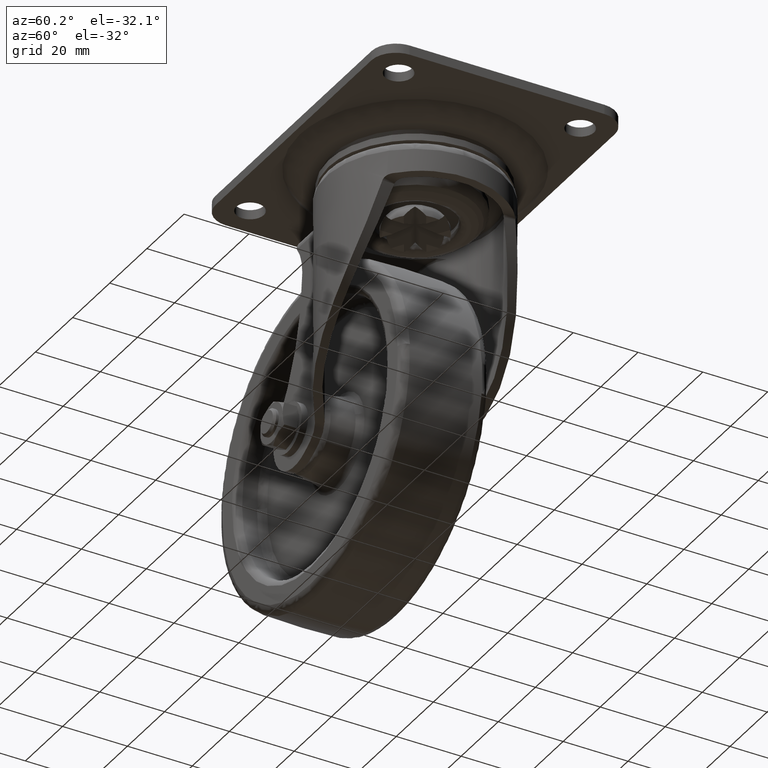
[diagram: clean part render]
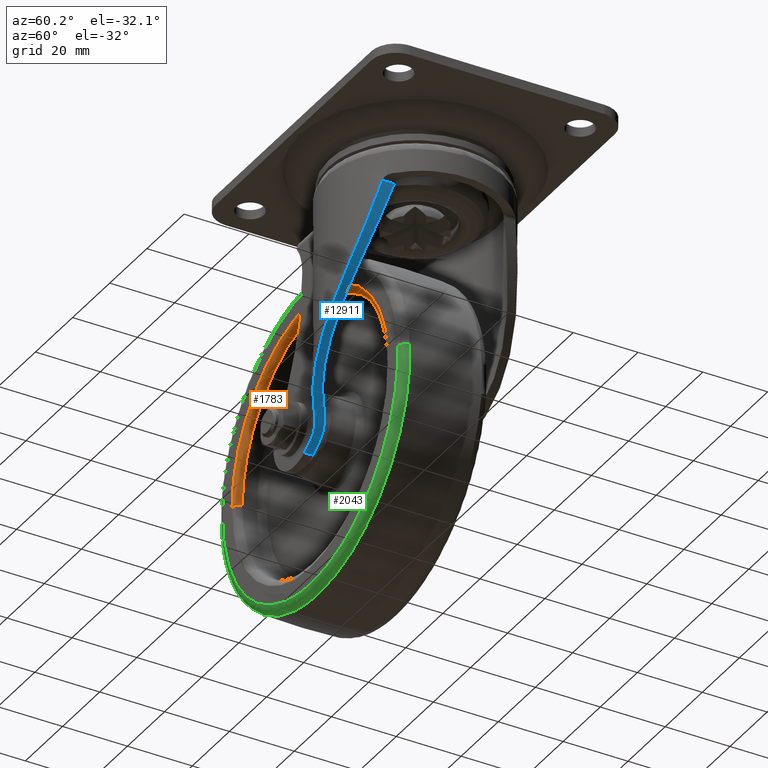
[diagram: same view with three faces highlighted in distinct colors, each labeled with its STEP entity id]
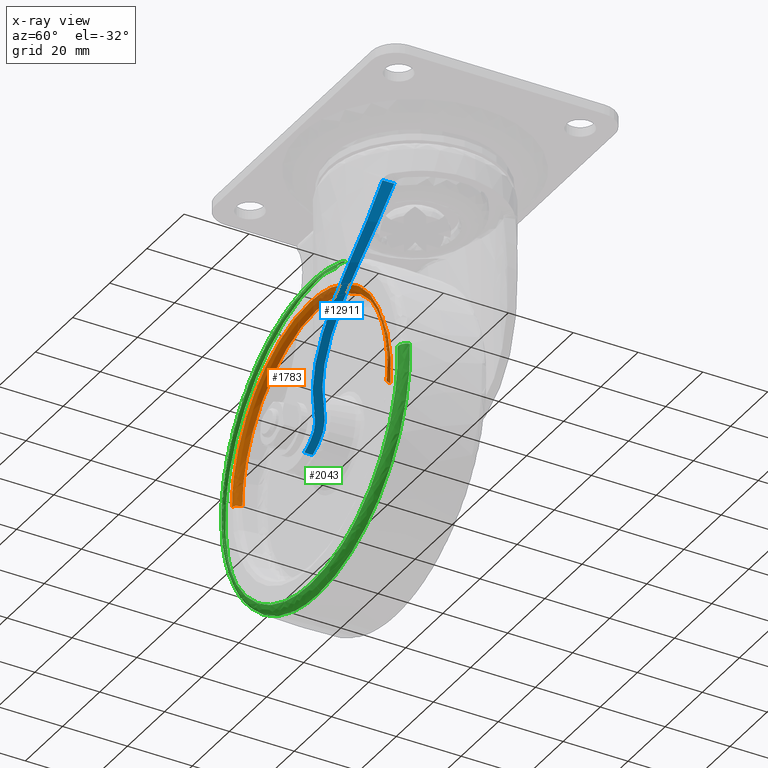
[diagram: x-ray of the same camera — body ghosted, the three highlighted faces saturated]
A machine part, auxiliary view with three faces highlighted in distinct colors.
The next image is the same camera in x-ray (body ghosted, the three faces saturated) — at least one of them is partly hidden behind the body in this view.
Their STEP definitions:

[orange] entity #1783 — the highlighted face is a freeform B-spline surface patch.
#81=CARTESIAN_POINT('',(-26.610430527720521,-11.500000085131690,-33.513357346729720));
#82=VERTEX_POINT('',#81);
#88=CARTESIAN_POINT('',(-32.999587000000091,-11.500000000000000,-32.999794000000009));
#89=VERTEX_POINT('',#88);
#90=CARTESIAN_POINT('',(-26.610430527720521,-11.500000085131690,-33.513357346729720));
#91=CARTESIAN_POINT('',(-28.721838562280539,-11.500000054637431,-33.171606622309348));
#92=CARTESIAN_POINT('',(-30.860702025963821,-11.500000026138880,-32.999720738758782));
#93=CARTESIAN_POINT('',(-32.999587000000091,-11.500000000000000,-32.999794000000009));
#94=B_SPLINE_CURVE_WITH_KNOTS('',3,(#90,#91,#92,#93),.UNSPECIFIED.,.F.,.U.,(4,4),(1.183253E-009,6.416668188560689),.UNSPECIFIED.);
#95=EDGE_CURVE('',#82,#89,#94,.T.);
#97=CARTESIAN_POINT('',(-72.999587000000702,-11.500001097917220,-72.999794000000009));
#98=VERTEX_POINT('',#97);
#99=CARTESIAN_POINT('',(-32.999587000000091,-11.500000000000000,-32.999794000000009));
#100=CARTESIAN_POINT('',(-35.617590997525873,-11.500000035925190,-32.999486940496112));
#101=CARTESIAN_POINT('',(-40.935293368073971,-11.500000116098430,-33.523625675318989));
#102=CARTESIAN_POINT('',(-48.246839152939820,-11.500000247214119,-35.765858664995818));
#103=CARTESIAN_POINT('',(-53.913770969516733,-11.500000365952021,-38.750791629008482));
#104=CARTESIAN_POINT('',(-58.505187814377010,-11.500000474216669,-42.048082099240752));
#105=CARTESIAN_POINT('',(-62.171427975608928,-11.500000571272031,-45.453860377704849));
#106=CARTESIAN_POINT('',(-65.759383480812929,-11.500000680513139,-49.825728362406473));
#107=CARTESIAN_POINT('',(-68.414801055524791,-11.500000776507880,-54.165022420568960));
#108=CARTESIAN_POINT('',(-70.888714294984922,-11.500000886417880,-59.699700710648607));
#109=CARTESIAN_POINT('',(-72.577013129787687,-11.500000993311730,-65.800299865048302));
#110=CARTESIAN_POINT('',(-72.999711296436089,-11.500001066481300,-70.709066863324978));
#111=CARTESIAN_POINT('',(-72.999587000000702,-11.500001097917220,-72.999794000000009));
#112=B_SPLINE_CURVE_WITH_KNOTS('',3,(#99,#100,#101,#102,#103,#104,#105,#106,#107,#108,#109,#110,#111),.UNSPECIFIED.,.F.,.U.,(4,1,1,1,1,1,1,1,1,1,4),(0.000000170427818,7.853970492414966,15.953426799167429,22.825709580180838,26.998185316444818,32.888499218903682,37.797342608095491,43.933264952801629,48.105718162683388,55.959740187226672,62.831951636742410),.UNSPECIFIED.);
#113=EDGE_CURVE('',#89,#98,#112,.T.);
#133=CARTESIAN_POINT('',(6.732878551401489,-11.500001097916780,-77.618363173102694));
#134=VERTEX_POINT('',#133);
#150=CARTESIAN_POINT('',(-3.041358080854533,-11.500000551329240,-46.494992170367738));
#151=VERTEX_POINT('',#150);
#152=CARTESIAN_POINT('',(6.732878551401489,-11.500001097916780,-77.618363173102694));
#153=CARTESIAN_POINT('',(6.965369379658082,-11.500001073322339,-75.619250721012946));
#154=CARTESIAN_POINT('',(7.127606874067149,-11.500001019951331,-71.585888016690049));
#155=CARTESIAN_POINT('',(6.381551508904199,-11.500000918667441,-64.870164739270095));
#156=CARTESIAN_POINT('',(4.583432629978576,-11.500000813357650,-58.797953234686652));
#157=CARTESIAN_POINT('',(1.465325458394497,-11.500000686370081,-52.321603033285022));
#158=CARTESIAN_POINT('',(-1.127512906472156,-11.500000604394611,-48.657358876218787));
#159=CARTESIAN_POINT('',(-3.041358080854533,-11.500000551329240,-46.494992170367738));
#160=B_SPLINE_CURVE_WITH_KNOTS('',3,(#152,#153,#154,#155,#156,#157,#158,#159),.UNSPECIFIED.,.F.,.U.,(4,1,1,1,1,4),(0.000000052375434,6.037752873155959,12.075510896159150,20.213346664417450,24.938552442348360,33.601419436579363),.UNSPECIFIED.);
#161=EDGE_CURVE('',#134,#151,#160,.T.);
#262=CARTESIAN_POINT('',(-3.041358080854533,-11.500000551329240,-46.494992170367738));
#263=CARTESIAN_POINT('',(-4.651238969682730,-11.500000506677290,-44.674993700620313));
#264=CARTESIAN_POINT('',(-7.890664031934187,-11.500000425230940,-41.625047396554940));
#265=CARTESIAN_POINT('',(-13.491390487520951,-11.500000305406420,-37.881382371137981));
#266=CARTESIAN_POINT('',(-19.624548981914529,-11.500000192012219,-35.080386321344363));
#267=CARTESIAN_POINT('',(-24.211748266490812,-11.500000119769339,-33.901238205166010));
#268=CARTESIAN_POINT('',(-26.610430527720521,-11.500000085131690,-33.513357346729720));
#269=B_SPLINE_CURVE_WITH_KNOTS('',3,(#262,#263,#264,#265,#266,#267,#268),.UNSPECIFIED.,.F.,.U.,(4,1,1,1,4),(8.313588E-009,7.289514425216805,13.292644707187110,20.153363282616588,27.442877699519240),.UNSPECIFIED.);
#270=EDGE_CURVE('',#151,#82,#269,.T.);
#1687=CARTESIAN_POINT('',(8.857278312651511,-13.495184528212507,-77.865302220396657));
#1688=CARTESIAN_POINT('',(9.139116635069225,-13.495184528212503,-75.440710961475645));
#1689=CARTESIAN_POINT('',(9.139116635069227,-13.495184528212500,-72.999794000000009));
#1690=CARTESIAN_POINT('',(9.139116635069234,-13.495184528212503,-30.861090364930703));
#1691=CARTESIAN_POINT('',(-32.999587000000083,-13.495184528212500,-30.861090364930696));
#1692=CARTESIAN_POINT('',(-75.138290635069410,-13.495184528212503,-30.861090364930689));
#1693=CARTESIAN_POINT('',(-75.138290635069396,-13.495184528212500,-72.999793999999980));
#1694=CARTESIAN_POINT('',(6.578440065992407,-13.654674266166609,-77.600406458632037));
#1695=CARTESIAN_POINT('',(6.844934096769973,-13.654674266166609,-75.307818665619735));
#1696=CARTESIAN_POINT('',(6.844934096769973,-13.654674266166609,-72.999794000000037));
#1697=CARTESIAN_POINT('',(6.844934096769980,-13.654674266166605,-33.155272903229964));
#1698=CARTESIAN_POINT('',(-32.999587000000098,-13.654674266166609,-33.155272903229964));
#1699=CARTESIAN_POINT('',(-72.844108096770128,-13.654674266166605,-33.155272903229942));
#1700=CARTESIAN_POINT('',(-72.844108096770171,-13.654674266166609,-72.999794000000009));
#1701=CARTESIAN_POINT('',(6.737713915705588,-11.360551436170397,-77.618920702813597));
#1702=CARTESIAN_POINT('',(7.005280398380182,-11.360551436170404,-75.317106849012845));
#1703=CARTESIAN_POINT('',(7.005280398380182,-11.360551436170402,-72.999794000000023));
#1704=CARTESIAN_POINT('',(7.005280398380189,-11.360551436170400,-32.994926601619738));
#1705=CARTESIAN_POINT('',(-32.999587000000083,-11.360551436170402,-32.994926601619738));
#1706=CARTESIAN_POINT('',(-73.004454398380332,-11.360551436170400,-32.994926601619738));
#1707=CARTESIAN_POINT('',(-73.004454398380375,-11.360551436170402,-72.999793999999980));
#1715=(BOUNDED_SURFACE()B_SPLINE_SURFACE(2,2,((#1687,#1694,#1701),(#1688,#1695,#1702),(#1689,#1696,#1703),(#1690,#1697,#1704),(#1691,#1698,#1705),(#1692,#1699,#1706),(#1693,#1700,#1707)),.UNSPECIFIED.,.F.,.F.,.U.)B_SPLINE_SURFACE_WITH_KNOTS((3,2,2,3),(3,3),(0.0,5.585409888202132,75.403100074066742,145.220790259931310),(0.0,3.644743894868789),.UNSPECIFIED.)GEOMETRIC_REPRESENTATION_ITEM()RATIONAL_B_SPLINE_SURFACE(((0.870832142693137,0.569876124684963,0.866008012003556),(0.888744487223442,0.581598036388157,0.883821127891813),(0.910068703028785,0.595552690642779,0.905027214382843),(0.643515751257300,0.421119346107403,0.639950880448479),(0.910068703028785,0.595552690642779,0.905027214382843),(0.643515751257300,0.421119346107403,0.639950880448479),(0.910068703028785,0.595552690642779,0.905027214382843)))REPRESENTATION_ITEM('')SURFACE());
#1716=ORIENTED_EDGE('',*,*,#95,.F.);
#1717=ORIENTED_EDGE('',*,*,#270,.F.);
#1718=ORIENTED_EDGE('',*,*,#161,.F.);
#1719=CARTESIAN_POINT('',(8.719501826389578,-13.500000000000000,-77.849291631574204));
#1720=VERTEX_POINT('',#1719);
#1721=CARTESIAN_POINT('',(8.719501826389578,-13.500000000000000,-77.849291631574204));
#1722=CARTESIAN_POINT('',(8.377980556191069,-13.500874885265180,-77.809592619958977));
#1723=CARTESIAN_POINT('',(7.842643173541511,-13.357242469176679,-77.747364094751362));
#1724=CARTESIAN_POINT('',(7.181731886695837,-12.838274148270569,-77.670538645970140));
#1725=CARTESIAN_POINT('',(6.813750042425427,-12.220091338394431,-77.627763812357770));
#1726=CARTESIAN_POINT('',(6.732823977520774,-11.712691510909179,-77.618356829340058));
#1727=CARTESIAN_POINT('',(6.732878551401489,-11.500001097916780,-77.618363173102694));
#1728=B_SPLINE_CURVE_WITH_KNOTS('',3,(#1721,#1722,#1723,#1724,#1725,#1726,#1727),.UNSPECIFIED.,.F.,.U.,(4,1,1,1,4),(0.000000633864222,1.030869383323649,1.619829422887545,2.503525969049167,3.141670869087527),.UNSPECIFIED.);
#1729=EDGE_CURVE('',#1720,#134,#1728,.T.);
#1730=ORIENTED_EDGE('',*,*,#1729,.F.);
#1731=CARTESIAN_POINT('',(-32.999587000000091,-13.500000000000000,-30.999794000000009));
#1732=VERTEX_POINT('',#1731);
#1733=CARTESIAN_POINT('',(8.719501826389578,-13.500000000000000,-77.849291631574204));
#1734=CARTESIAN_POINT('',(9.017951805102202,-13.499999999999989,-75.284119137216734));
#1735=CARTESIAN_POINT('',(9.121950350550755,-13.500000000000050,-70.839386475667027));
#1736=CARTESIAN_POINT('',(8.327892045201082,-13.499999999999970,-64.977282405405148));
#1737=CARTESIAN_POINT('',(7.009114283901183,-13.499999999999860,-59.880597713987306));
#1738=CARTESIAN_POINT('',(5.146295187283397,-13.500000000000400,-55.149220182370151));
#1739=CARTESIAN_POINT('',(2.337559221241300,-13.500000000000080,-50.050850043936613));
#1740=CARTESIAN_POINT('',(-1.262937936934281,-13.499999999999631,-45.234001351954078));
#1741=CARTESIAN_POINT('',(-6.223433695805325,-13.500000000000140,-40.384360165508973));
#1742=CARTESIAN_POINT('',(-11.399942657587610,-13.500000000001100,-36.796391926121743));
#1743=CARTESIAN_POINT('',(-16.703229310841341,-13.499999999997749,-34.183260513961677));
#1744=CARTESIAN_POINT('',(-21.234746285504791,-13.500000000001020,-32.583944010893987));
#1745=CARTESIAN_POINT('',(-26.727950906805031,-13.499999999999950,-31.332521040689329));
#1746=CARTESIAN_POINT('',(-30.601575252923379,-13.499999999999300,-30.999569568208980));
#1747=CARTESIAN_POINT('',(-32.999587000000091,-13.500000000000000,-30.999794000000009));
#1748=B_SPLINE_CURVE_WITH_KNOTS('',3,(#1733,#1734,#1735,#1736,#1737,#1738,#1739,#1740,#1741,#1742,#1743,#1744,#1745,#1746,#1747),.UNSPECIFIED.,.F.,.U.,(4,1,1,1,1,1,1,1,1,1,1,1,4),(0.000000200503237,7.747391292872145,13.281349111579040,17.708478507598400,23.519096477780419,28.499603981429821,35.140366690495547,41.504236262587860,49.251678500841393,53.955521894687720,59.212766436572920,63.639917061724383,70.833912188179099),.UNSPECIFIED.);
#1749=EDGE_CURVE('',#1720,#1732,#1748,.T.);
#1750=ORIENTED_EDGE('',*,*,#1749,.T.);
#1751=CARTESIAN_POINT('',(-74.999586999223681,-13.500000000000000,-72.999794000000009));
#1752=VERTEX_POINT('',#1751);
#1753=CARTESIAN_POINT('',(-32.999587000000091,-13.500000000000000,-30.999794000000009));
#1754=CARTESIAN_POINT('',(-35.662603876247523,-13.499999999999980,-30.999451318067731));
#1755=CARTESIAN_POINT('',(-40.301222733592212,-13.500000000000080,-31.442548051243040));
#1756=CARTESIAN_POINT('',(-46.458392341587817,-13.499999999999931,-33.085678539413031));
#1757=CARTESIAN_POINT('',(-52.581151766454823,-13.500000000000190,-35.621354808187121));
#1758=CARTESIAN_POINT('',(-58.734400587360781,-13.499999999999851,-39.465155048564732));
#1759=CARTESIAN_POINT('',(-64.138715433677945,-13.500000000000069,-44.547987315709079));
#1760=CARTESIAN_POINT('',(-67.817272652461398,-13.500000000000000,-49.322086107603539));
#1761=CARTESIAN_POINT('',(-70.662825341961764,-13.499999999999950,-54.136214927481760));
#1762=CARTESIAN_POINT('',(-72.684918648841659,-13.500000000000121,-58.893653587344197));
#1763=CARTESIAN_POINT('',(-74.494345128088625,-13.499999999999909,-65.354683054989138));
#1764=CARTESIAN_POINT('',(-75.000178184332384,-13.500000000000110,-69.907233098980939));
#1765=CARTESIAN_POINT('',(-74.999586999223681,-13.500000000000000,-72.999794000000009));
#1766=B_SPLINE_CURVE_WITH_KNOTS('',3,(#1753,#1754,#1755,#1756,#1757,#1758,#1759,#1760,#1761,#1762,#1763,#1764,#1765),.UNSPECIFIED.,.F.,.U.,(4,1,1,1,1,1,1,1,1,1,4),(0.000000167699255,7.988982867491316,13.916281521318600,19.070480872815679,27.832592594804758,35.563857909600827,41.233452885945120,45.872209055716297,52.314972177827983,56.696058273931882,65.973549217725122),.UNSPECIFIED.);
#1767=EDGE_CURVE('',#1732,#1752,#1766,.T.);
#1768=ORIENTED_EDGE('',*,*,#1767,.T.);
#1769=CARTESIAN_POINT('',(-74.999586999223681,-13.500000000000000,-72.999794000000009));
#1770=CARTESIAN_POINT('',(-74.688568942368519,-13.500568882172921,-72.999793999999838));
#1771=CARTESIAN_POINT('',(-74.230972392339311,-13.390944082153981,-72.999794000000250));
#1772=CARTESIAN_POINT('',(-73.679014824126710,-13.031720703202939,-72.999794000000009));
#1773=CARTESIAN_POINT('',(-73.301265184462139,-12.615095163558349,-72.999793999999895));
#1774=CARTESIAN_POINT('',(-73.052890489753651,-12.072691867188309,-72.999793999999810));
#1775=CARTESIAN_POINT('',(-72.999544069247264,-11.679983412583210,-72.999794000000236));
#1776=CARTESIAN_POINT('',(-72.999587000000702,-11.500001097917220,-72.999794000000009));
#1777=B_SPLINE_CURVE_WITH_KNOTS('',3,(#1769,#1770,#1771,#1772,#1773,#1774,#1775,#1776),.UNSPECIFIED.,.F.,.U.,(4,1,1,1,1,4),(0.000000633863626,0.932687183704037,1.374527737572389,1.963501691559125,2.601712864807547,3.141670869740842),.UNSPECIFIED.);
#1778=EDGE_CURVE('',#1752,#98,#1777,.T.);
#1779=ORIENTED_EDGE('',*,*,#1778,.T.);
#1780=ORIENTED_EDGE('',*,*,#113,.F.);
#1781=EDGE_LOOP('',(#1716,#1717,#1718,#1730,#1750,#1768,#1779,#1780));
#1782=FACE_OUTER_BOUND('',#1781,.T.);
#1783=ADVANCED_FACE('',(#1782),#1715,.T.);

[blue] entity #12911 — the highlighted face is a freeform B-spline surface patch.
#8402=CARTESIAN_POINT('',(3.525399647757480,-24.573425360297620,-54.975304929234149));
#8403=VERTEX_POINT('',#8402);
#8409=CARTESIAN_POINT('',(-16.154311068581400,-18.849903418837702,-75.528247126037002));
#8410=VERTEX_POINT('',#8409);
#8411=CARTESIAN_POINT('',(3.525399647757480,-24.573425360297620,-54.975304929234149));
#8412=CARTESIAN_POINT('',(3.154650213077407,-24.626602348979649,-55.501698456162082));
#8413=CARTESIAN_POINT('',(2.778543000660112,-24.671972121170519,-56.024346653920936));
#8414=CARTESIAN_POINT('',(1.304192081509770,-24.815003783433429,-58.029911136733347));
#8415=CARTESIAN_POINT('',(0.167278441094686,-24.852578868202389,-59.485948352128858));
#8416=CARTESIAN_POINT('',(-1.605354820259729,-24.780081521556770,-61.624246721149120));
#8417=CARTESIAN_POINT('',(-2.207453059390931,-24.734355884537621,-62.329382405364584));
#8418=CARTESIAN_POINT('',(-2.974312113756087,-24.646648130255610,-63.201251503029511));
#8419=CARTESIAN_POINT('',(-3.128503515302289,-24.627560144025178,-63.375266836417033));
#8420=CARTESIAN_POINT('',(-3.437392724272741,-24.586349922873751,-63.721312036678633));
#8421=CARTESIAN_POINT('',(-3.901720276646347,-24.519961828577689,-64.237673251860045));
#8422=CARTESIAN_POINT('',(-4.368922505675952,-24.439597327187091,-64.745929374654779));
#8423=CARTESIAN_POINT('',(-5.306864527300321,-24.259486873350660,-65.751664171704832));
#8424=CARTESIAN_POINT('',(-5.936881938591695,-24.113599116301781,-66.407788189049811));
#8425=CARTESIAN_POINT('',(-7.204665816666083,-23.765628360106021,-67.691369746004639));
#8426=CARTESIAN_POINT('',(-7.842435279481437,-23.563556613732288,-68.318828343716987));
#8427=CARTESIAN_POINT('',(-9.123804956497267,-23.097645834726041,-69.545002730511541));
#8428=CARTESIAN_POINT('',(-9.767409620743489,-22.833824010900450,-70.143720273411120));
#8429=CARTESIAN_POINT('',(-11.058196234177259,-22.237404754296300,-71.312152524583354));
#8430=CARTESIAN_POINT('',(-11.705385208058919,-21.904835165895481,-71.881870251395043));
#8431=CARTESIAN_POINT('',(-12.514885005657099,-21.440451756816419,-72.575570229939615));
#8432=CARTESIAN_POINT('',(-12.676809086291019,-21.345135076797629,-72.713387104495894));
#8433=CARTESIAN_POINT('',(-13.000655357680239,-21.149450457625111,-72.987163175134413));
#8434=CARTESIAN_POINT('',(-13.162743709267280,-21.048976329240990,-73.123260757732197));
#8435=CARTESIAN_POINT('',(-13.647776334125121,-20.740433941912659,-73.527789962518810));
#8436=CARTESIAN_POINT('',(-13.968242030298279,-20.526063728224202,-73.791427276742041));
#8437=CARTESIAN_POINT('',(-14.920173568595860,-19.856261961571779,-74.564473888309223));
#8438=CARTESIAN_POINT('',(-15.542203233429790,-19.374192017858810,-75.056039345325800));
#8439=CARTESIAN_POINT('',(-16.150917140872458,-18.852811604331571,-75.525629168916424));
#8440=CARTESIAN_POINT('',(-16.152614164022829,-18.851357660620788,-75.526938238875147));
#8441=CARTESIAN_POINT('',(-16.154311068581400,-18.849903418837702,-75.528247126037002));
#8442=B_SPLINE_CURVE_WITH_KNOTS('',3,(#8411,#8412,#8413,#8414,#8415,#8416,#8417,#8418,#8419,#8420,#8421,#8422,#8423,#8424,#8425,#8426,#8427,#8428,#8429,#8430,#8431,#8432,#8433,#8434,#8435,#8436,#8437,#8438,#8439,#8440,#8441),.UNSPECIFIED.,.F.,.U.,(4,2,2,2,2,1,2,2,2,2,2,2,2,2,2,4),(0.207842065296692,0.218750000000002,0.250000000000003,0.265625000000003,0.269531250000003,0.273437500000003,0.281250000000004,0.296875000000004,0.312500000000004,0.328125000000005,0.343750000000005,0.347656250000005,0.351562500000005,0.359375000000005,0.375000000000005,0.375043685479166),.UNSPECIFIED.);
#8443=EDGE_CURVE('',#8403,#8410,#8442,.T.);
#8678=CARTESIAN_POINT('',(18.218237527660801,-16.863464839282951,-22.550122951543550));
#8679=VERTEX_POINT('',#8678);
#8703=CARTESIAN_POINT('',(18.218237527660801,-16.863464839282951,-22.550122951543550));
#8704=CARTESIAN_POINT('',(17.796321621205760,-17.319275312442581,-24.294659782268269));
#8705=CARTESIAN_POINT('',(17.328021870438050,-17.790685377948101,-26.015411877042268));
#8706=CARTESIAN_POINT('',(16.299830591632471,-18.737242576844761,-29.416714673726108));
#8707=CARTESIAN_POINT('',(15.739929949957560,-19.212481695989080,-31.097238477308029));
#8708=CARTESIAN_POINT('',(14.527919657663549,-20.144584807692048,-34.423346840954842));
#8709=CARTESIAN_POINT('',(13.875810081297841,-20.601529877201958,-36.068911168305249));
#8710=CARTESIAN_POINT('',(12.477139039773490,-21.477477296003709,-39.329029775870069));
#8711=CARTESIAN_POINT('',(11.730585765796731,-21.896555426563751,-40.943568626884300));
#8712=CARTESIAN_POINT('',(10.139033262826819,-22.677426486354751,-44.144758442220663));
#8713=CARTESIAN_POINT('',(9.294052217392157,-23.039305547818788,-45.731395674144331));
#8714=CARTESIAN_POINT('',(7.948148554800327,-23.523053191998230,-48.092490336223094));
#8715=CARTESIAN_POINT('',(7.486423656645072,-23.674432965987759,-48.876376570863961));
#8716=CARTESIAN_POINT('',(6.773428516473011,-23.884342091319290,-50.047745809526937));
#8717=CARTESIAN_POINT('',(6.532360662752378,-23.951448852724170,-50.437458937887811));
#8718=CARTESIAN_POINT('',(6.165543252235378,-24.047489821624559,-51.020947105134873));
#8719=CARTESIAN_POINT('',(6.042401399886995,-24.078733381538960,-51.215262917818450));
#8720=CARTESIAN_POINT('',(5.794358968692922,-24.139623152008198,-51.603539784700068));
#8721=CARTESIAN_POINT('',(5.669394662394518,-24.169283404405519,-51.797598171792600));
#8722=CARTESIAN_POINT('',(4.889578344747529,-24.347938255645531,-52.998950540492579));
#8723=CARTESIAN_POINT('',(4.216805645142691,-24.474257790378850,-53.993640494140891));
#8724=CARTESIAN_POINT('',(3.525399647757480,-24.573425360297620,-54.975304929234149));
#8725=B_SPLINE_CURVE_WITH_KNOTS('',3,(#8703,#8704,#8705,#8706,#8707,#8708,#8709,#8710,#8711,#8712,#8713,#8714,#8715,#8716,#8717,#8718,#8719,#8720,#8721,#8722,#8723,#8724),.UNSPECIFIED.,.F.,.U.,(4,2,2,2,2,2,2,2,2,2,4),(0.0,0.031250000000000,0.062500000000000,0.093750000000001,0.125000000000001,0.156250000000001,0.171875000000001,0.179687500000001,0.183593750000001,0.187500000000002,0.207842065296692),.UNSPECIFIED.);
#8726=EDGE_CURVE('',#8679,#8403,#8725,.T.);
#12404=CARTESIAN_POINT('',(-24.353478015776801,-15.817226000000000,-81.193483146101215));
#12405=VERTEX_POINT('',#12404);
#12413=CARTESIAN_POINT('',(-24.353478015776801,-15.817226000000000,-81.193483146101215));
#12414=CARTESIAN_POINT('',(-23.324534549648781,-15.817759054846700,-80.553786282259580));
#12415=CARTESIAN_POINT('',(-21.380223459445460,-16.054668913924630,-79.300774199178335));
#12416=CARTESIAN_POINT('',(-18.593992625493680,-17.085208457342091,-77.375624627290776));
#12417=CARTESIAN_POINT('',(-16.948097211626550,-18.176270193944049,-76.147966683216438));
#12418=CARTESIAN_POINT('',(-16.154311068581400,-18.849903418837702,-75.528247126037002));
#12419=B_SPLINE_CURVE_WITH_KNOTS('',3,(#12413,#12414,#12415,#12416,#12417,#12418),.UNSPECIFIED.,.F.,.U.,(4,1,1,4),(0.000000035967568,3.634725201894183,6.939010351937840,10.573735517862509),.UNSPECIFIED.);
#12420=EDGE_CURVE('',#12405,#8410,#12419,.T.);
#12514=CARTESIAN_POINT('',(-17.846202660859849,-20.824112840347350,-76.803480371900108));
#12515=VERTEX_POINT('',#12514);
#12523=CARTESIAN_POINT('',(-24.353478015776801,-18.417225999999950,-81.193483146101215));
#12524=VERTEX_POINT('',#12523);
#12530=CARTESIAN_POINT('',(-17.846202660859849,-20.824112840347350,-76.803480371900108));
#12531=CARTESIAN_POINT('',(-18.537911250448811,-20.239975790389568,-77.319152909349015));
#12532=CARTESIAN_POINT('',(-19.796154219022888,-19.427898824341600,-78.219773109719355));
#12533=CARTESIAN_POINT('',(-22.004446430882581,-18.611109525720082,-79.709552309646909));
#12534=CARTESIAN_POINT('',(-23.467664508436261,-18.416579346317231,-80.644911692191741));
#12535=CARTESIAN_POINT('',(-24.353478015776801,-18.417225999999950,-81.193483146101215));
#12536=B_SPLINE_CURVE_WITH_KNOTS('',3,(#12530,#12531,#12532,#12533,#12534,#12535),.UNSPECIFIED.,.F.,.U.,(4,1,1,4),(0.000000036930130,3.125707767543704,5.209473036058276,8.335180766671460),.UNSPECIFIED.);
#12537=EDGE_CURVE('',#12515,#12524,#12536,.T.);
#12806=CARTESIAN_POINT('',(-30.838942938493062,-27.703186568286426,-84.847737806393809));
#12807=CARTESIAN_POINT('',(-30.838942938493201,-15.520076985792857,-84.847737806393752));
#12808=CARTESIAN_POINT('',(10.017627888555303,-27.703186568286029,-63.888586359512736));
#12809=CARTESIAN_POINT('',(10.017627888555161,-15.520076985792453,-63.888586359512686));
#12810=CARTESIAN_POINT('',(19.032815842449281,-27.703186568286121,-18.863351265458185));
#12811=CARTESIAN_POINT('',(19.032815842449132,-15.520076985792558,-18.863351265458135));
#12819=(BOUNDED_SURFACE()B_SPLINE_SURFACE(1,2,((#12806,#12808,#12810),(#12807,#12809,#12811)),.UNSPECIFIED.,.F.,.F.,.U.)B_SPLINE_SURFACE_WITH_KNOTS((2,2),(3,3),(0.0,12.183109582493570),(0.0,87.035845133029170),.UNSPECIFIED.)GEOMETRIC_REPRESENTATION_ITEM()RATIONAL_B_SPLINE_SURFACE(((0.999933062174622,0.899759348999059,0.998152302403917),(0.999933062174622,0.899759348999059,0.998152302403917)))REPRESENTATION_ITEM('')SURFACE());
#12820=CARTESIAN_POINT('',(-27.519969758222050,-15.817226000000000,-83.061225355197593));
#12821=VERTEX_POINT('',#12820);
#12822=CARTESIAN_POINT('',(-24.353478015776801,-15.817226000000000,-81.193483146101215));
#12823=CARTESIAN_POINT('',(-25.396816979632909,-15.817225999999989,-81.836377937327342));
#12824=CARTESIAN_POINT('',(-26.452576515302489,-15.817226000000000,-82.459112845952333));
#12825=CARTESIAN_POINT('',(-27.519969758222050,-15.817226000000000,-83.061225355197593));
#12826=B_SPLINE_CURVE_WITH_KNOTS('',3,(#12822,#12823,#12824,#12825),.UNSPECIFIED.,.F.,.U.,(4,4),(6.508305E-011,3.676525337965918),.UNSPECIFIED.);
#12827=EDGE_CURVE('',#12405,#12821,#12826,.T.);
#12828=ORIENTED_EDGE('',*,*,#12827,.F.);
#12829=ORIENTED_EDGE('',*,*,#12420,.T.);
#12830=ORIENTED_EDGE('',*,*,#8443,.F.);
#12831=ORIENTED_EDGE('',*,*,#8726,.F.);
#12832=CARTESIAN_POINT('',(18.218237527660801,-20.499425513553600,-22.550122951543550));
#12833=VERTEX_POINT('',#12832);
#12834=CARTESIAN_POINT('',(18.218237527660801,-16.863464839282951,-22.550122951543550));
#12835=CARTESIAN_POINT('',(18.218237527660801,-20.499425513553600,-22.550122951543550));
#12836=QUASI_UNIFORM_CURVE('',1,(#12834,#12835),.UNSPECIFIED.,.F.,.U.);
#12837=EDGE_CURVE('',#8679,#12833,#12836,.T.);
#12838=ORIENTED_EDGE('',*,*,#12837,.T.);
#12839=CARTESIAN_POINT('',(18.218237527660801,-20.499425513553600,-22.550122951543550));
#12840=CARTESIAN_POINT('',(17.770487389087361,-20.897349756463761,-24.401479731169189));
#12841=CARTESIAN_POINT('',(17.270206002355309,-21.315618520003419,-26.227248144017970));
#12842=CARTESIAN_POINT('',(16.166104061736661,-22.164672064328030,-29.834578945839478));
#12843=CARTESIAN_POINT('',(15.562274888637710,-22.595506066829561,-31.616126775091171));
#12844=CARTESIAN_POINT('',(14.250388048164281,-23.444993806832031,-35.140317722870847));
#12845=CARTESIAN_POINT('',(13.542331324284600,-23.863711777656391,-36.882946713585667));
#12846=CARTESIAN_POINT('',(12.019237837326431,-24.665956282162199,-40.333396602365752));
#12847=CARTESIAN_POINT('',(11.204212023488809,-25.049559624385310,-42.041204531761863));
#12848=CARTESIAN_POINT('',(9.897697152722092,-25.580994134977018,-44.579284350252642));
#12849=CARTESIAN_POINT('',(9.448177681586216,-25.750800229906531,-45.421367219387513));
#12850=CARTESIAN_POINT('',(8.752220127915759,-25.992105629947531,-46.678854485675522));
#12851=CARTESIAN_POINT('',(8.516619808450624,-26.070305032760238,-47.097077238338393));
#12852=CARTESIAN_POINT('',(8.157701919176331,-26.183931570976529,-47.723035641764518));
#12853=CARTESIAN_POINT('',(8.037142919307048,-26.221193802755501,-47.931457151091152));
#12854=CARTESIAN_POINT('',(7.794581940042615,-26.294318076858222,-48.347146688547369));
#12855=CARTESIAN_POINT('',(7.672530165468266,-26.330196132586579,-48.554502060001731));
#12856=CARTESIAN_POINT('',(6.567120398573947,-26.646729555097100,-50.416311609571132));
#12857=CARTESIAN_POINT('',(5.535218987680676,-26.882966672260551,-52.040075369358888));
#12858=CARTESIAN_POINT('',(3.371677958050786,-27.239022267523609,-55.226602310405497));
#12859=CARTESIAN_POINT('',(2.240048152417292,-27.358985904884939,-56.789360562966003));
#12860=CARTESIAN_POINT('',(0.465719796559542,-27.427432530010950,-59.088254017781011));
#12861=CARTESIAN_POINT('',(-0.138550851085662,-27.431603346471690,-59.847006374153828));
#12862=CARTESIAN_POINT('',(-1.064603414497735,-27.406068724717951,-60.973843105856538));
#12863=CARTESIAN_POINT('',(-1.376563123712738,-27.392252146956221,-61.347573148872449));
#12864=CARTESIAN_POINT('',(-1.849477219833700,-27.363022561338401,-61.905346337281820));
#12865=CARTESIAN_POINT('',(-2.008049294316218,-27.351852048262661,-62.090921148366377));
#12866=CARTESIAN_POINT('',(-2.326096762269571,-27.326641694343159,-62.460244666118257));
#12867=CARTESIAN_POINT('',(-2.485618338792106,-27.312600943202948,-62.644049895537187));
#12868=CARTESIAN_POINT('',(-3.285669985563378,-27.235060100660998,-63.558797783356397));
#12869=CARTESIAN_POINT('',(-3.933534530430942,-27.149575033976380,-64.276909205624179));
#12870=CARTESIAN_POINT('',(-5.243701089119761,-26.927230034215750,-65.685815312466588));
#12871=CARTESIAN_POINT('',(-5.906004834062998,-26.790378753142331,-66.376610487815640));
#12872=CARTESIAN_POINT('',(-7.243735026791113,-26.460037598205229,-67.730843779308060));
#12873=CARTESIAN_POINT('',(-7.919163905050292,-26.266560225298189,-68.394282674413176));
#12874=CARTESIAN_POINT('',(-9.281659999395114,-25.816586348312921,-69.693646562023389));
#12875=CARTESIAN_POINT('',(-9.968730820763330,-25.560108862007290,-70.329572830606111));
#12876=CARTESIAN_POINT('',(-10.833754348560230,-25.195151321305030,-71.107094956483934));
#12877=CARTESIAN_POINT('',(-11.007067506635259,-25.119937037909882,-71.261729678073891));
#12878=CARTESIAN_POINT('',(-11.354279895898779,-24.964917382794830,-71.569253149080822));
#12879=CARTESIAN_POINT('',(-11.528362962092530,-24.885022839367991,-71.722301104985817));
#12880=CARTESIAN_POINT('',(-12.049473993634290,-24.639163108416991,-72.177104319506199));
#12881=CARTESIAN_POINT('',(-12.395663562726821,-24.466910477867810,-72.474794844031152));
#12882=CARTESIAN_POINT('',(-13.429904600388790,-23.924349968049299,-73.351534239424652));
#12883=CARTESIAN_POINT('',(-14.113646891458229,-23.528280398381021,-73.914262224600066));
#12884=CARTESIAN_POINT('',(-15.465658099098050,-22.662489418495319,-74.997020669199145));
#12885=CARTESIAN_POINT('',(-16.133936779637800,-22.192786872995541,-75.517054774656344));
#12886=CARTESIAN_POINT('',(-17.121253779813220,-21.428172205232990,-76.265407922050898));
#12887=CARTESIAN_POINT('',(-17.447836222177621,-21.163276877063751,-76.509572496238846));
#12888=CARTESIAN_POINT('',(-17.796454910892141,-20.866669268764369,-76.766826489569638));
#12889=CARTESIAN_POINT('',(-17.821337353096990,-20.845422350421700,-76.785169072544505));
#12890=CARTESIAN_POINT('',(-17.846202660859849,-20.824112840347350,-76.803480371900108));
#12891=B_SPLINE_CURVE_WITH_KNOTS('',3,(#12839,#12840,#12841,#12842,#12843,#12844,#12845,#12846,#12847,#12848,#12849,#12850,#12851,#12852,#12853,#12854,#12855,#12856,#12857,#12858,#12859,#12860,#12861,#12862,#12863,#12864,#12865,#12866,#12867,#12868,#12869,#12870,#12871,#12872,#12873,#12874,#12875,#12876,#12877,#12878,#12879,#12880,#12881,#12882,#12883,#12884,#12885,#12886,#12887,#12888,#12889,#12890),.UNSPECIFIED.,.F.,.U.,(4,2,2,2,2,2,2,2,2,2,2,2,2,2,2,2,2,2,2,2,2,2,2,2,2,4),(0.0,0.031250000000000,0.062500000000000,0.093750000000000,0.125000000000000,0.140625000000000,0.148437500000000,0.152343750000000,0.156250000000000,0.187500000000000,0.218750000000001,0.234375000000001,0.242187500000001,0.246093750000001,0.250000000000001,0.265625000000001,0.281250000000001,0.296875000000001,0.312500000000001,0.316406250000001,0.320312500000001,0.328125000000001,0.343750000000001,0.359375000000001,0.367187500000001,0.367788411107174),.UNSPECIFIED.);
#12892=EDGE_CURVE('',#12833,#12515,#12891,.T.);
#12893=ORIENTED_EDGE('',*,*,#12892,.T.);
#12894=ORIENTED_EDGE('',*,*,#12537,.T.);
#12895=CARTESIAN_POINT('',(-27.519969758222050,-18.417225999999950,-83.061225355197593));
#12896=VERTEX_POINT('',#12895);
#12897=CARTESIAN_POINT('',(-24.353478015776801,-18.417225999999950,-81.193483146101215));
#12898=CARTESIAN_POINT('',(-25.396816979632909,-18.417225999999950,-81.836377937327342));
#12899=CARTESIAN_POINT('',(-26.452576515302489,-18.417225999999950,-82.459112845952333));
#12900=CARTESIAN_POINT('',(-27.519969758222050,-18.417225999999950,-83.061225355197593));
#12901=B_SPLINE_CURVE_WITH_KNOTS('',3,(#12897,#12898,#12899,#12900),.UNSPECIFIED.,.F.,.U.,(4,4),(6.508305E-011,3.676525337965918),.UNSPECIFIED.);
#12902=EDGE_CURVE('',#12524,#12896,#12901,.T.);
#12903=ORIENTED_EDGE('',*,*,#12902,.T.);
#12904=CARTESIAN_POINT('',(-27.519969758222050,-15.817226000000000,-83.061225355197593));
#12905=CARTESIAN_POINT('',(-27.519969758222050,-18.417225999999950,-83.061225355197593));
#12906=QUASI_UNIFORM_CURVE('',1,(#12904,#12905),.UNSPECIFIED.,.F.,.U.);
#12907=EDGE_CURVE('',#12821,#12896,#12906,.T.);
#12908=ORIENTED_EDGE('',*,*,#12907,.F.);
#12909=EDGE_LOOP('',(#12828,#12829,#12830,#12831,#12838,#12893,#12894,#12903,#12908));
#12910=FACE_OUTER_BOUND('',#12909,.T.);
#12911=ADVANCED_FACE('',(#12910),#12819,.T.);

[green] entity #2043 — the highlighted face is a freeform B-spline surface patch.
#1847=CARTESIAN_POINT('',(-17.800819811205027,-10.970326041083494,-25.687879526326178));
#1848=CARTESIAN_POINT('',(-26.436992268268249,-10.970326041083494,-22.913542955139111));
#1849=CARTESIAN_POINT('',(-35.496390807985875,-10.970326041083494,-23.369301901212111));
#1850=CARTESIAN_POINT('',(-85.126882906773787,-10.970326041083496,-25.866105709197900));
#1851=CARTESIAN_POINT('',(-82.630079098788002,-10.970326041083494,-75.496597807985793));
#1852=CARTESIAN_POINT('',(-80.133275290802203,-10.970326041083496,-125.127089906773690));
#1853=CARTESIAN_POINT('',(-30.502783192014316,-10.970326041083494,-122.630286098787960));
#1854=CARTESIAN_POINT('',(19.127708906773581,-10.970326041083496,-120.133482290802150));
#1855=CARTESIAN_POINT('',(16.630905098787817,-10.970326041083494,-70.502990192014209));
#1856=CARTESIAN_POINT('',(-17.790990554937956,-13.677671518486603,-25.657282246555333));
#1857=CARTESIAN_POINT('',(-26.432748146057943,-13.677671518486603,-22.881151472931272));
#1858=CARTESIAN_POINT('',(-35.498005526085876,-13.677671518486603,-23.337205164717624));
#1859=CARTESIAN_POINT('',(-85.160594361368240,-13.677671518486601,-25.835623690803377));
#1860=CARTESIAN_POINT('',(-82.662175835282483,-13.677671518486603,-75.498212526085766));
#1861=CARTESIAN_POINT('',(-80.163757309196711,-13.677671518486601,-125.160801361368140));
#1862=CARTESIAN_POINT('',(-30.501168473914323,-13.677671518486603,-122.662382835282410));
#1863=CARTESIAN_POINT('',(19.161420361368066,-13.677671518486601,-120.163964309196610));
#1864=CARTESIAN_POINT('',(16.663001835282309,-13.677671518486603,-70.501375473914209));
#1865=CARTESIAN_POINT('',(-18.617192842917351,-13.494257152736026,-28.229149523767962));
#1866=CARTESIAN_POINT('',(-26.789489631409175,-13.494257152736019,-25.603831193960360));
#1867=CARTESIAN_POINT('',(-35.362279714040127,-13.494257152736026,-26.035109910294093));
#1868=CARTESIAN_POINT('',(-82.326963803746040,-13.494257152736022,-28.397802624334101));
#1869=CARTESIAN_POINT('',(-79.964271089706003,-13.494257152736026,-75.362486714040031));
#1870=CARTESIAN_POINT('',(-77.601578375665980,-13.494257152736022,-122.327170803745930));
#1871=CARTESIAN_POINT('',(-30.636894285960075,-13.494257152736026,-119.964478089705890));
#1872=CARTESIAN_POINT('',(16.327789803745841,-13.494257152736022,-117.601785375665940));
#1873=CARTESIAN_POINT('',(13.965097089705836,-13.494257152736026,-70.637101285959957));
#1881=(BOUNDED_SURFACE()B_SPLINE_SURFACE(2,2,((#1847,#1856,#1865),(#1848,#1857,#1866),(#1849,#1858,#1867),(#1850,#1859,#1868),(#1851,#1860,#1869),(#1852,#1861,#1870),(#1853,#1862,#1871),(#1854,#1863,#1872),(#1855,#1864,#1873)),.UNSPECIFIED.,.F.,.F.,.U.)B_SPLINE_SURFACE_WITH_KNOTS((3,2,2,2,3),(3,3),(0.0,19.760276103381610,102.094759867471590,184.429243631561600,266.763727395651470),(0.0,4.377435172767308),.UNSPECIFIED.)GEOMETRIC_REPRESENTATION_ITEM()RATIONAL_B_SPLINE_SURFACE(((0.816546372887770,0.553098324942221,0.814081048369012),(0.849964269559381,0.575734372674321,0.847398049411464),(0.914229455466325,0.619265233697589,0.911469205262334),(0.646457847520723,0.437886646100638,0.644506055883710),(0.914229455466325,0.619265233697589,0.911469205262334),(0.646457847520723,0.437886646100638,0.644506055883710),(0.914229455466325,0.619265233697589,0.911469205262334),(0.646457847520723,0.437886646100638,0.644506055883710),(0.914229455466325,0.619265233697589,0.911469205262334)))REPRESENTATION_ITEM('')SURFACE());
#1882=CARTESIAN_POINT('',(-18.565395196565220,-13.500000000000000,-28.067909748795369));
#1883=VERTEX_POINT('',#1882);
#1884=CARTESIAN_POINT('',(-32.999587000000091,-13.500000000000000,-25.806361046465810));
#1885=VERTEX_POINT('',#1884);
#1886=CARTESIAN_POINT('',(-18.565395196565220,-13.500000000000000,-28.067909748795369));
#1887=CARTESIAN_POINT('',(-20.747602976398881,-13.500000000000030,-27.366766397449439));
#1888=CARTESIAN_POINT('',(-25.512208084855850,-13.499999999999950,-26.211199944248261));
#1889=CARTESIAN_POINT('',(-30.401892303686829,-13.500000000000041,-25.806145414523112));
#1890=CARTESIAN_POINT('',(-32.999587000000091,-13.500000000000000,-25.806361046465810));
#1891=B_SPLINE_CURVE_WITH_KNOTS('',3,(#1886,#1887,#1888,#1889,#1890),.UNSPECIFIED.,.F.,.U.,(4,1,4),(2.582576E-009,6.876247543079846,14.669327955802650),.UNSPECIFIED.);
#1892=EDGE_CURVE('',#1883,#1885,#1891,.T.);
#1893=ORIENTED_EDGE('',*,*,#1892,.F.);
#1894=CARTESIAN_POINT('',(-17.801952867227481,-11.139242568636940,-25.691406591984389));
#1895=VERTEX_POINT('',#1894);
#1896=CARTESIAN_POINT('',(-17.801952867227481,-11.139242568636940,-25.691406591984389));
#1897=CARTESIAN_POINT('',(-17.806291050375680,-11.395297222970759,-25.704910828710339));
#1898=CARTESIAN_POINT('',(-17.841880017423680,-11.942077316615309,-25.815694956441799));
#1899=CARTESIAN_POINT('',(-17.955496414057610,-12.560414388120959,-26.169368986404692));
#1900=CARTESIAN_POINT('',(-18.109663667071938,-13.036916480739830,-26.649272902373209));
#1901=CARTESIAN_POINT('',(-18.299953397746460,-13.394005084807549,-27.241621699764849));
#1902=CARTESIAN_POINT('',(-18.468848574383632,-13.500246854698940,-27.767371851455330));
#1903=CARTESIAN_POINT('',(-18.565395196565220,-13.500000000000000,-28.067909748795369));
#1904=B_SPLINE_CURVE_WITH_KNOTS('',3,(#1896,#1897,#1898,#1899,#1900,#1901,#1902,#1903),.UNSPECIFIED.,.F.,.U.,(4,1,1,1,1,4),(0.000000585777244,0.769373215267400,1.657210088144857,2.130555061041441,2.840823569001173,3.787764563409021),.UNSPECIFIED.);
#1905=EDGE_CURVE('',#1895,#1883,#1904,.T.);
#1906=ORIENTED_EDGE('',*,*,#1905,.F.);
#1907=CARTESIAN_POINT('',(-32.999587000000091,-11.139242619027410,-23.310241759842921));
#1908=VERTEX_POINT('',#1907);
#1909=CARTESIAN_POINT('',(-17.801952867227481,-11.139242568636940,-25.691406591984389));
#1910=CARTESIAN_POINT('',(-21.018552246838809,-11.139242590517069,-24.657477933364259));
#1911=CARTESIAN_POINT('',(-26.081428787497639,-11.139242613202709,-23.585482780571471));
#1912=CARTESIAN_POINT('',(-31.229835788667280,-11.139242619027820,-23.310223438858781));
#1913=CARTESIAN_POINT('',(-32.999587000000091,-11.139242619027410,-23.310241759842921));
#1914=B_SPLINE_CURVE_WITH_KNOTS('',3,(#1909,#1910,#1911,#1912,#1913),.UNSPECIFIED.,.F.,.U.,(4,1,4),(2.718947E-009,10.135917004719561,15.445206930422170),.UNSPECIFIED.);
#1915=EDGE_CURVE('',#1895,#1908,#1914,.T.);
#1916=ORIENTED_EDGE('',*,*,#1915,.T.);
#1917=CARTESIAN_POINT('',(-82.356797683204661,-11.139240506316510,-67.262428131138506));
#1918=VERTEX_POINT('',#1917);
#1919=CARTESIAN_POINT('',(-32.999587000000091,-11.139242619027410,-23.310241759842921));
#1920=CARTESIAN_POINT('',(-35.259022949684848,-11.139242565088660,-23.310158358340608));
#1921=CARTESIAN_POINT('',(-39.966173269561203,-11.139242445875180,-23.631788898007411));
#1922=CARTESIAN_POINT('',(-46.243960603278708,-11.139242267514710,-24.971827825632491));
#1923=CARTESIAN_POINT('',(-52.029942064867448,-11.139242086512271,-26.988430712822641));
#1924=CARTESIAN_POINT('',(-57.815348779150597,-11.139241889564840,-29.755702513014590));
#1925=CARTESIAN_POINT('',(-63.709101680301607,-11.139241665279579,-33.687252907265382));
#1926=CARTESIAN_POINT('',(-69.623959239929789,-11.139241408852190,-39.107005963784282));
#1927=CARTESIAN_POINT('',(-74.318548114879547,-11.139241170781370,-45.033643491593999));
#1928=CARTESIAN_POINT('',(-77.749023374225544,-11.139240959583770,-51.115753821281018));
#1929=CARTESIAN_POINT('',(-80.698366151033611,-11.139240737248230,-58.262095902142342));
#1930=CARTESIAN_POINT('',(-81.933613935972204,-11.139240593955030,-63.615232055294818));
#1931=CARTESIAN_POINT('',(-82.356797683204661,-11.139240506316510,-67.262428131138506));
#1932=B_SPLINE_CURVE_WITH_KNOTS('',3,(#1919,#1920,#1921,#1922,#1923,#1924,#1925,#1926,#1927,#1928,#1929,#1930,#1931),.UNSPECIFIED.,.F.,.U.,(4,1,1,1,1,1,1,1,1,1,4),(0.000000136278416,6.778314280699959,14.121482358253560,19.205243872979761,25.136278116336712,33.326743602152391,40.387461638300287,49.142807595557471,55.921134967527877,61.287305792918723,72.302072197722254),.UNSPECIFIED.);
#1933=EDGE_CURVE('',#1908,#1918,#1932,.T.);
#1934=ORIENTED_EDGE('',*,*,#1933,.T.);
#1935=CARTESIAN_POINT('',(-32.999587000000091,-11.139240506329100,-122.689346358009300));
#1936=VERTEX_POINT('',#1935);
#1937=CARTESIAN_POINT('',(-82.356797683204661,-11.139240506316510,-67.262428131138506));
#1938=CARTESIAN_POINT('',(-82.697251642425698,-11.139240506317661,-70.188869460068688));
#1939=CARTESIAN_POINT('',(-82.822947061306053,-11.139240506319471,-74.897791494500865));
#1940=CARTESIAN_POINT('',(-82.058909432747015,-11.139240506321810,-81.519272430393301));
#1941=CARTESIAN_POINT('',(-80.436884616469797,-11.139240506324141,-88.549132675716194));
#1942=CARTESIAN_POINT('',(-77.715128528162381,-11.139240506326310,-95.141397999754787));
#1943=CARTESIAN_POINT('',(-74.081613432292130,-11.139240506327731,-101.115320300809200));
#1944=CARTESIAN_POINT('',(-70.369339312358036,-11.139240506329420,-105.981035242261300));
#1945=CARTESIAN_POINT('',(-65.873762078795536,-11.139240506329481,-110.463704829746600));
#1946=CARTESIAN_POINT('',(-60.562148637822780,-11.139240506331401,-114.492430644668300));
#1947=CARTESIAN_POINT('',(-55.080261712487832,-11.139240506329950,-117.682658727984010));
#1948=CARTESIAN_POINT('',(-48.610953391171250,-11.139240506331360,-120.356979329956300));
#1949=CARTESIAN_POINT('',(-41.183323232019049,-11.139240506329950,-122.230145538749600));
#1950=CARTESIAN_POINT('',(-35.836656677539857,-11.139240506329950,-122.689604545781710));
#1951=CARTESIAN_POINT('',(-32.999587000000091,-11.139240506329100,-122.689346358009300));
#1952=B_SPLINE_CURVE_WITH_KNOTS('',3,(#1937,#1938,#1939,#1940,#1941,#1942,#1943,#1944,#1945,#1946,#1947,#1948,#1949,#1950,#1951),.UNSPECIFIED.,.F.,.U.,(4,1,1,1,1,1,1,1,1,1,1,1,4),(0.000000184402197,8.838484510907605,14.076183139335580,19.968563090848932,30.443907626710750,35.354216391024814,40.919236513630992,48.775596065639938,54.340679678394309,60.887748616819373,67.762214950508778,75.291339193027198,83.802509248525098),.UNSPECIFIED.);
#1953=EDGE_CURVE('',#1918,#1936,#1952,.T.);
#1954=ORIENTED_EDGE('',*,*,#1953,.T.);
#1955=CARTESIAN_POINT('',(16.627205264766818,-11.139241614439481,-70.503176322689939));
#1956=VERTEX_POINT('',#1955);
#1957=CARTESIAN_POINT('',(-32.999587000000091,-11.139240506329100,-122.689346358009300));
#1958=CARTESIAN_POINT('',(-30.272623494852180,-11.139240506374859,-122.689576659116300));
#1959=CARTESIAN_POINT('',(-25.867674763048718,-11.139240514177491,-122.325675982460100));
#1960=CARTESIAN_POINT('',(-18.173024585046370,-11.139240550010269,-120.643476854792000));
#1961=CARTESIAN_POINT('',(-11.291906756161540,-11.139240606836880,-117.971044639896800));
#1962=CARTESIAN_POINT('',(-4.806188153636923,-11.139240689716690,-114.070277333121000));
#1963=CARTESIAN_POINT('',(-0.341769428665503,-11.139240764055060,-110.570316388609000));
#1964=CARTESIAN_POINT('',(3.580415529780677,-11.139240844716570,-106.771874117855300));
#1965=CARTESIAN_POINT('',(7.275742854152132,-11.139240939048840,-102.328833659713790));
#1966=CARTESIAN_POINT('',(11.341995392755701,-11.139241074552951,-95.945582420649686));
#1967=CARTESIAN_POINT('',(14.538965618453281,-11.139241235343800,-88.369630047982810));
#1968=CARTESIAN_POINT('',(16.525974197613280,-11.139241424951861,-79.434414533684361));
#1969=CARTESIAN_POINT('',(16.785677577524371,-11.139241547770551,-73.645684622040903));
#1970=CARTESIAN_POINT('',(16.627205264766818,-11.139241614439481,-70.503176322689939));
#1971=B_SPLINE_CURVE_WITH_KNOTS('',3,(#1957,#1958,#1959,#1960,#1961,#1962,#1963,#1964,#1965,#1966,#1967,#1968,#1969,#1970),.UNSPECIFIED.,.F.,.U.,(4,1,1,1,1,1,1,1,1,1,1,4),(0.000000170028059,8.180848250533231,13.215194520158590,23.598634103773271,30.206294358326549,35.869996769519808,40.589535712504130,46.567879591288794,53.175552278339772,63.244322222694173,71.110542590024380,80.549970226922881),.UNSPECIFIED.);
#1972=EDGE_CURVE('',#1936,#1956,#1971,.T.);
#1973=ORIENTED_EDGE('',*,*,#1972,.T.);
#1974=CARTESIAN_POINT('',(14.134238615793469,-13.500000000000000,-70.628592137413648));
#1975=VERTEX_POINT('',#1974);
#1976=CARTESIAN_POINT('',(16.627205264766818,-11.139241614439481,-70.503176322689939));
#1977=CARTESIAN_POINT('',(16.609938402540688,-11.454447146980540,-70.504044981570686));
#1978=CARTESIAN_POINT('',(16.463479773482842,-12.038836582941229,-70.511413001648847));
#1979=CARTESIAN_POINT('',(16.034745491068300,-12.665896548130940,-70.532981705493981));
#1980=CARTESIAN_POINT('',(15.479502854381529,-13.144069582609990,-70.560914773781789));
#1981=CARTESIAN_POINT('',(14.863306488896439,-13.432968538423310,-70.591914293657140));
#1982=CARTESIAN_POINT('',(14.350946264965760,-13.500020614775931,-70.617690039556948));
#1983=CARTESIAN_POINT('',(14.134238615793469,-13.500000000000000,-70.628592137413648));
#1984=B_SPLINE_CURVE_WITH_KNOTS('',3,(#1976,#1977,#1978,#1979,#1980,#1981,#1982,#1983),.UNSPECIFIED.,.F.,.U.,(4,1,1,1,1,4),(0.000000585776945,0.946941822381336,1.775559519650977,2.248922306541028,3.136765113144225,3.787765532195233),.UNSPECIFIED.);
#1985=EDGE_CURVE('',#1956,#1975,#1984,.T.);
#1986=ORIENTED_EDGE('',*,*,#1985,.T.);
#1987=CARTESIAN_POINT('',(-32.999587000000091,-13.500000000000000,-120.193226953534190));
#1988=VERTEX_POINT('',#1987);
#1989=CARTESIAN_POINT('',(-32.999587000000091,-13.500000000000000,-120.193226953534190));
#1990=CARTESIAN_POINT('',(-29.214145377147190,-13.500000000000030,-120.194215569449000));
#1991=CARTESIAN_POINT('',(-24.034708727619311,-13.500000000000060,-119.566543618273300));
#1992=CARTESIAN_POINT('',(-15.900837597171011,-13.499999999999890,-117.184071286362100));
#1993=CARTESIAN_POINT('',(-9.539043376750890,-13.500000000000149,-114.237539347954790));
#1994=CARTESIAN_POINT('',(-3.813024612330259,-13.499999999999840,-110.225714048034110));
#1995=CARTESIAN_POINT('',(0.577840404434265,-13.500000000000320,-106.310429148698200));
#1996=CARTESIAN_POINT('',(4.899692241378889,-13.499999999999281,-101.467939059443490));
#1997=CARTESIAN_POINT('',(9.091509615008507,-13.500000000001030,-94.886828291573352));
#1998=CARTESIAN_POINT('',(11.940858115584289,-13.499999999999771,-87.950893572686454));
#1999=CARTESIAN_POINT('',(13.943538381850960,-13.500000000000281,-79.913637936333600));
#2000=CARTESIAN_POINT('',(14.320233240538450,-13.499999999999689,-74.309698765595300));
#2001=CARTESIAN_POINT('',(14.134238615793469,-13.500000000000000,-70.628592137413648));
#2002=B_SPLINE_CURVE_WITH_KNOTS('',3,(#1989,#1990,#1991,#1992,#1993,#1994,#1995,#1996,#1997,#1998,#1999,#2000,#2001),.UNSPECIFIED.,.F.,.U.,(4,1,1,1,1,1,1,1,1,1,4),(0.000000173290360,11.355984342544129,15.539793251563550,25.401593542354419,32.274993636402890,36.458758600490533,43.033189058940842,51.699694908128691,59.768440855141279,65.446457993915786,76.503599628559812),.UNSPECIFIED.);
#2003=EDGE_CURVE('',#1988,#1975,#2002,.T.);
#2004=ORIENTED_EDGE('',*,*,#2003,.F.);
#2005=CARTESIAN_POINT('',(-80.193019953534289,-13.500000000000000,-72.999794000000009));
#2006=VERTEX_POINT('',#2005);
#2007=CARTESIAN_POINT('',(-80.193019953534289,-13.500000000000000,-72.999794000000009));
#2008=CARTESIAN_POINT('',(-80.193532730084826,-13.500000000000011,-76.281678262325414));
#2009=CARTESIAN_POINT('',(-79.596485063393814,-13.500000000000020,-81.976455152973671));
#2010=CARTESIAN_POINT('',(-77.552735704448750,-13.499999999999980,-88.943575960587836));
#2011=CARTESIAN_POINT('',(-74.965161701460048,-13.500000000000050,-94.879096714915406));
#2012=CARTESIAN_POINT('',(-72.028073890121675,-13.499999999999840,-99.779413960411304));
#2013=CARTESIAN_POINT('',(-68.177403131357664,-13.500000000000220,-104.620828520744500));
#2014=CARTESIAN_POINT('',(-63.786793098619512,-13.499999999999730,-108.984776278838790));
#2015=CARTESIAN_POINT('',(-57.953628973611657,-13.500000000000130,-113.311091751707390));
#2016=CARTESIAN_POINT('',(-51.742289629140643,-13.499999999999989,-116.485490156735490));
#2017=CARTESIAN_POINT('',(-45.983084574691809,-13.499999999999989,-118.466541707911010));
#2018=CARTESIAN_POINT('',(-40.045817992806732,-13.500000000000121,-119.819003400447800));
#2019=CARTESIAN_POINT('',(-35.702288504845171,-13.499999999999760,-120.193480762121100));
#2020=CARTESIAN_POINT('',(-32.999587000000091,-13.500000000000000,-120.193226953534190));
#2021=B_SPLINE_CURVE_WITH_KNOTS('',3,(#2007,#2008,#2009,#2010,#2011,#2012,#2013,#2014,#2015,#2016,#2017,#2018,#2019,#2020),.UNSPECIFIED.,.F.,.U.,(4,1,1,1,1,1,1,1,1,1,1,4),(0.000000164928366,9.845560335571555,17.084961973948069,21.718185961875712,29.247166896978040,34.170018957692101,40.250999607559628,47.779992719959353,55.888117386092922,61.100491504168623,66.023332281088386,74.131387422704009),.UNSPECIFIED.);
#2022=EDGE_CURVE('',#2006,#1988,#2021,.T.);
#2023=ORIENTED_EDGE('',*,*,#2022,.F.);
#2024=CARTESIAN_POINT('',(-32.999587000000091,-13.500000000000000,-25.806361046465810));
#2025=CARTESIAN_POINT('',(-35.895352266236081,-13.500000000000011,-25.806023407417690));
#2026=CARTESIAN_POINT('',(-40.431880443947193,-13.499999999999980,-26.225337398987261));
#2027=CARTESIAN_POINT('',(-47.009958873496949,-13.500000000000000,-27.808810229560500));
#2028=CARTESIAN_POINT('',(-52.083441564338443,-13.500000000000060,-29.712489834247730));
#2029=CARTESIAN_POINT('',(-58.174249714625986,-13.499999999999920,-32.872260129527291));
#2030=CARTESIAN_POINT('',(-63.598045262975262,-13.500000000000091,-36.792619300920428));
#2031=CARTESIAN_POINT('',(-68.779944199399992,-13.500000000000000,-42.006837544764352));
#2032=CARTESIAN_POINT('',(-72.106209581644649,-13.499999999999931,-46.406568956074672));
#2033=CARTESIAN_POINT('',(-74.971909365057826,-13.500000000000190,-51.221193047665231));
#2034=CARTESIAN_POINT('',(-77.469937459154437,-13.499999999999959,-56.674495327791341));
#2035=CARTESIAN_POINT('',(-79.631846573424269,-13.500000000000060,-64.216157057837336));
#2036=CARTESIAN_POINT('',(-80.193438839081097,-13.499999999999790,-69.910960873247546));
#2037=CARTESIAN_POINT('',(-80.193019953534289,-13.500000000000000,-72.999794000000009));
#2038=B_SPLINE_CURVE_WITH_KNOTS('',3,(#2024,#2025,#2026,#2027,#2028,#2029,#2030,#2031,#2032,#2033,#2034,#2035,#2036,#2037),.UNSPECIFIED.,.F.,.U.,(4,1,1,1,1,1,1,1,1,1,1,4),(0.000000164900996,8.687212125534543,13.610050814797081,20.270302313721871,24.903537850647179,34.170018957680071,40.250999607550277,46.911237491823456,50.675738634757217,57.046428418657413,64.864977658240164,74.131387422704194),.UNSPECIFIED.);
#2039=EDGE_CURVE('',#1885,#2006,#2038,.T.);
#2040=ORIENTED_EDGE('',*,*,#2039,.F.);
#2041=EDGE_LOOP('',(#1893,#1906,#1916,#1934,#1954,#1973,#1986,#2004,#2023,#2040));
#2042=FACE_OUTER_BOUND('',#2041,.T.);
#2043=ADVANCED_FACE('',(#2042),#1881,.T.);